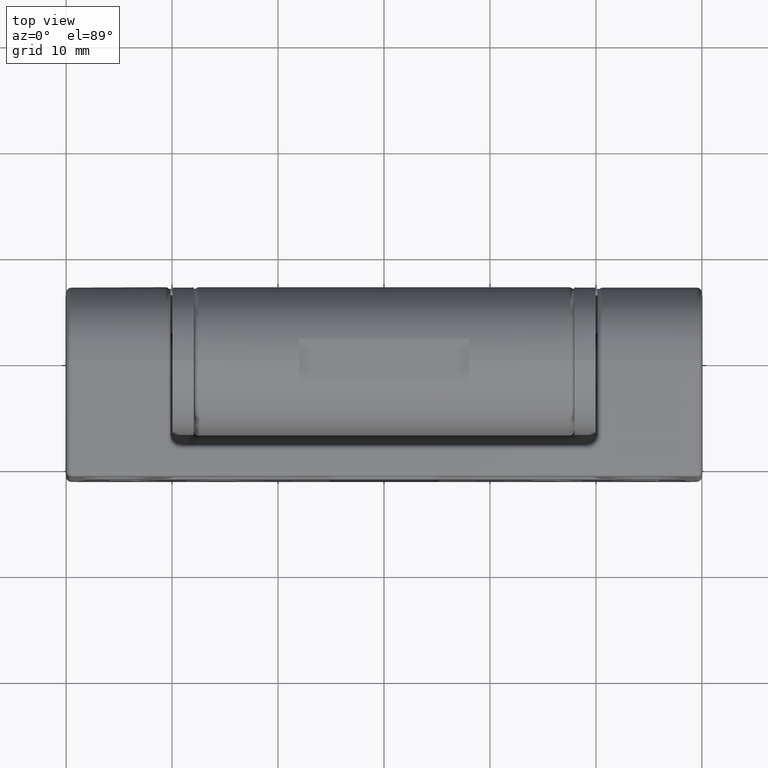
[diagram: clean part render]
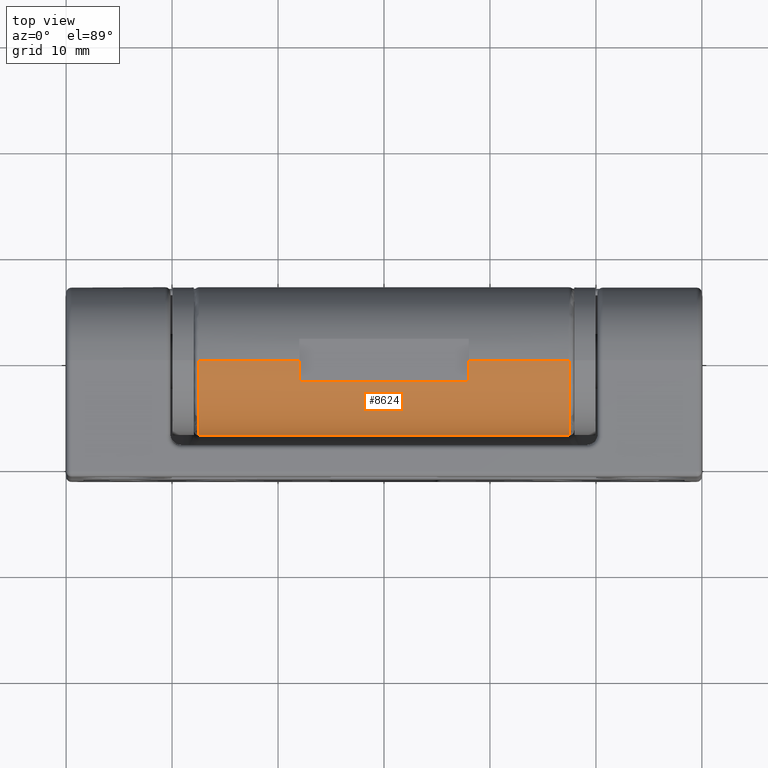
[diagram: same view with one face highlighted and labeled with its STEP entity id]
A machine part, top view. The second image highlights one B-rep face of the part: STEP entity #8624.
In plain terms, the highlighted cylindrical surface (partial cylindrical patch) has radius 7 mm, axis along (-1, 0, 0).
Its self-contained STEP definition (entity closure, byte-faithful):
#865 = DIRECTION ( 'NONE',  ( 0.0000000000000000000, 0.0000000000000000000, 1.000000000000000000 ) ) ;
#1061 = DIRECTION ( 'NONE',  ( 1.000000000000000000, 0.0000000000000000000, 0.0000000000000000000 ) ) ;
#1162 = CARTESIAN_POINT ( 'NONE',  ( -8.000000000000119000, -2.027313493271455200, 6.700000000000000200 ) ) ;
#1796 = VERTEX_POINT ( 'NONE', #7460 ) ;
#2373 = CARTESIAN_POINT ( 'NONE',  ( 970.0000000000000000, -8.526512829121199700E-014, 7.000000000000000000 ) ) ;
#2819 = AXIS2_PLACEMENT_3D ( 'NONE', #20178, #7102, #22371 ) ;
#3260 = FACE_OUTER_BOUND ( 'NONE', #27414, .T. ) ;
#3460 = CARTESIAN_POINT ( 'NONE',  ( 8.000000000000000000, -8.526512829121199700E-014, 0.0000000000000000000 ) ) ;
#3841 = AXIS2_PLACEMENT_3D ( 'NONE', #6403, #21673, #8593 ) ;
#5144 = CIRCLE ( 'NONE', #2819, 7.000000000000000000 ) ;
#5543 = ORIENTED_EDGE ( 'NONE', *, *, #11785, .T. ) ;
#5580 = LINE ( 'NONE', #10325, #15807 ) ;
#5662 = DIRECTION ( 'NONE',  ( 0.0000000000000000000, 0.0000000000000000000, 1.000000000000000000 ) ) ;
#5764 = VERTEX_POINT ( 'NONE', #17141 ) ;
#6270 = CARTESIAN_POINT ( 'NONE',  ( 970.0000000000000000, -7.000000000000090600, 8.572527594031470200E-016 ) ) ;
#6403 = CARTESIAN_POINT ( 'NONE',  ( 17.44999999999999900, -8.526512829121199700E-014, 0.0000000000000000000 ) ) ;
#6983 = EDGE_CURVE ( 'NONE', #5764, #1796, #27500, .T. ) ;
#7102 = DIRECTION ( 'NONE',  ( 1.000000000000000000, 0.0000000000000000000, 0.0000000000000000000 ) ) ;
#7460 = CARTESIAN_POINT ( 'NONE',  ( 17.45000000000004200, -8.526512829121199700E-014, 7.000000000000000000 ) ) ;
#8063 = LINE ( 'NONE', #6270, #18981 ) ;
#8593 = DIRECTION ( 'NONE',  ( -5.947623346206195500E-015, 0.0000000000000000000, -1.000000000000000000 ) ) ;
#8624 = ADVANCED_FACE ( 'NONE', ( #3260 ), #14194, .T. ) ;
#8678 = EDGE_CURVE ( 'NONE', #8726, #23083, #14884, .T. ) ;
#8726 = VERTEX_POINT ( 'NONE', #9722 ) ;
#8975 = LINE ( 'NONE', #2373, #14800 ) ;
#9080 = ORIENTED_EDGE ( 'NONE', *, *, #22528, .F. ) ;
#9722 = CARTESIAN_POINT ( 'NONE',  ( -17.44999999999999900, -8.526512829121199700E-014, 7.000000000000000000 ) ) ;
#10029 = CARTESIAN_POINT ( 'NONE',  ( -8.000000000000119000, -8.526512829121199700E-014, 7.000000000000000000 ) ) ;
#10325 = CARTESIAN_POINT ( 'NONE',  ( 970.0000000000000000, -8.526512829121199700E-014, 7.000000000000000000 ) ) ;
#11785 = EDGE_CURVE ( 'NONE', #18368, #8726, #8975, .T. ) ;
#12611 = VERTEX_POINT ( 'NONE', #18863 ) ;
#13211 = CARTESIAN_POINT ( 'NONE',  ( 970.0000000000000000, -2.027313493271455200, 6.700000000000000200 ) ) ;
#13226 = ORIENTED_EDGE ( 'NONE', *, *, #22688, .T. ) ;
#13577 = ORIENTED_EDGE ( 'NONE', *, *, #17154, .F. ) ;
#13579 = ORIENTED_EDGE ( 'NONE', *, *, #8678, .T. ) ;
#14013 = VERTEX_POINT ( 'NONE', #22011 ) ;
#14113 = CIRCLE ( 'NONE', #18608, 7.000000000000000000 ) ;
#14123 = CARTESIAN_POINT ( 'NONE',  ( -17.44999999999999900, -8.526512829121199700E-014, 0.0000000000000000000 ) ) ;
#14194 = CYLINDRICAL_SURFACE ( 'NONE', #18283, 7.000000000000000000 ) ;
#14800 = VECTOR ( 'NONE', #15428, 1000.000000000000000 ) ;
#14884 = CIRCLE ( 'NONE', #16843, 7.000000000000000000 ) ;
#14890 = EDGE_CURVE ( 'NONE', #18368, #18695, #5144, .T. ) ;
#15197 = VECTOR ( 'NONE', #19786, 1000.000000000000000 ) ;
#15298 = ORIENTED_EDGE ( 'NONE', *, *, #14890, .F. ) ;
#15428 = DIRECTION ( 'NONE',  ( -1.000000000000000000, 0.0000000000000000000, 0.0000000000000000000 ) ) ;
#15547 = CARTESIAN_POINT ( 'NONE',  ( -17.44999999999999900, -7.000000000000090600, 8.572527594031470200E-016 ) ) ;
#15807 = VECTOR ( 'NONE', #25569, 1000.000000000000000 ) ;
#16312 = DIRECTION ( 'NONE',  ( 0.0000000000000000000, 0.0000000000000000000, -1.000000000000000000 ) ) ;
#16843 = AXIS2_PLACEMENT_3D ( 'NONE', #14123, #1061, #16312 ) ;
#17141 = CARTESIAN_POINT ( 'NONE',  ( 17.44999999999999900, -7.000000000000090600, 8.572527594031470200E-016 ) ) ;
#17154 = EDGE_CURVE ( 'NONE', #5764, #23083, #8063, .T. ) ;
#17968 = EDGE_CURVE ( 'NONE', #18695, #12611, #26756, .T. ) ;
#18225 = DIRECTION ( 'NONE',  ( -1.000000000000000000, 0.0000000000000000000, 0.0000000000000000000 ) ) ;
#18283 = AXIS2_PLACEMENT_3D ( 'NONE', #26947, #18225, #865 ) ;
#18368 = VERTEX_POINT ( 'NONE', #10029 ) ;
#18608 = AXIS2_PLACEMENT_3D ( 'NONE', #3460, #18727, #5662 ) ;
#18695 = VERTEX_POINT ( 'NONE', #1162 ) ;
#18727 = DIRECTION ( 'NONE',  ( -1.000000000000000000, 0.0000000000000000000, 0.0000000000000000000 ) ) ;
#18863 = CARTESIAN_POINT ( 'NONE',  ( 8.000000000000000000, -2.027313493271455200, 6.700000000000000200 ) ) ;
#18981 = VECTOR ( 'NONE', #21533, 1000.000000000000000 ) ;
#19786 = DIRECTION ( 'NONE',  ( 1.000000000000000000, -0.0000000000000000000, -0.0000000000000000000 ) ) ;
#20178 = CARTESIAN_POINT ( 'NONE',  ( -8.000000000000119000, -8.526512829121199700E-014, 0.0000000000000000000 ) ) ;
#21533 = DIRECTION ( 'NONE',  ( -1.000000000000000000, 0.0000000000000000000, 0.0000000000000000000 ) ) ;
#21673 = DIRECTION ( 'NONE',  ( -1.000000000000000000, -0.0000000000000000000, 6.145497978572910900E-015 ) ) ;
#22011 = CARTESIAN_POINT ( 'NONE',  ( 8.000000000000000000, -8.526512829121199700E-014, 7.000000000000000000 ) ) ;
#22371 = DIRECTION ( 'NONE',  ( 0.0000000000000000000, 0.0000000000000000000, -1.000000000000000000 ) ) ;
#22528 = EDGE_CURVE ( 'NONE', #12611, #14013, #14113, .T. ) ;
#22688 = EDGE_CURVE ( 'NONE', #1796, #14013, #5580, .T. ) ;
#23083 = VERTEX_POINT ( 'NONE', #15547 ) ;
#25569 = DIRECTION ( 'NONE',  ( -1.000000000000000000, 0.0000000000000000000, 0.0000000000000000000 ) ) ;
#26756 = LINE ( 'NONE', #13211, #15197 ) ;
#26947 = CARTESIAN_POINT ( 'NONE',  ( 970.0000000000000000, -8.526512829121199700E-014, 0.0000000000000000000 ) ) ;
#27138 = ORIENTED_EDGE ( 'NONE', *, *, #17968, .F. ) ;
#27322 = ORIENTED_EDGE ( 'NONE', *, *, #6983, .T. ) ;
#27414 = EDGE_LOOP ( 'NONE', ( #27322, #13226, #9080, #27138, #15298, #5543, #13579, #13577 ) ) ;
#27500 = CIRCLE ( 'NONE', #3841, 7.000000000000000000 ) ;